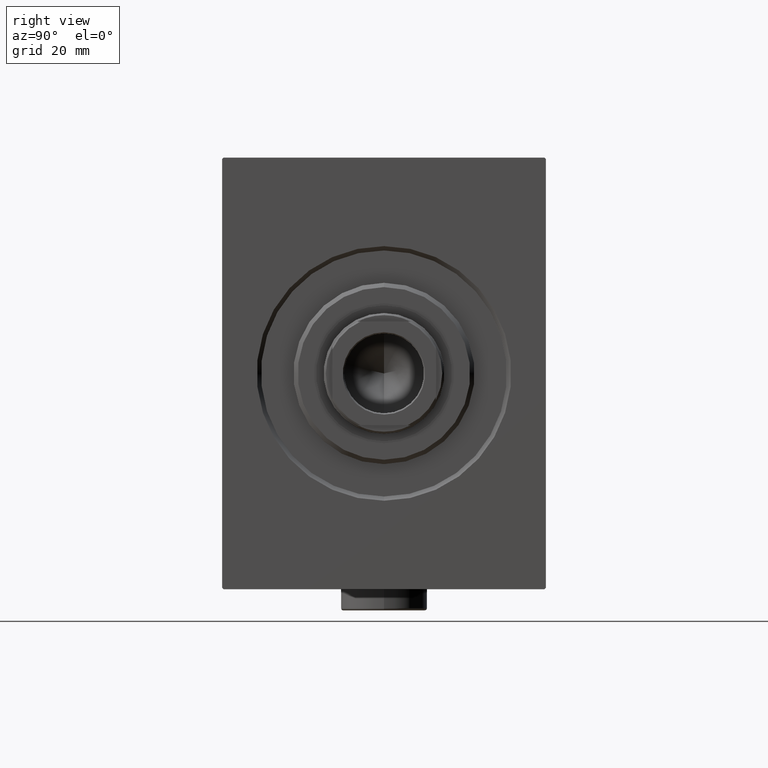
[diagram: clean part render]
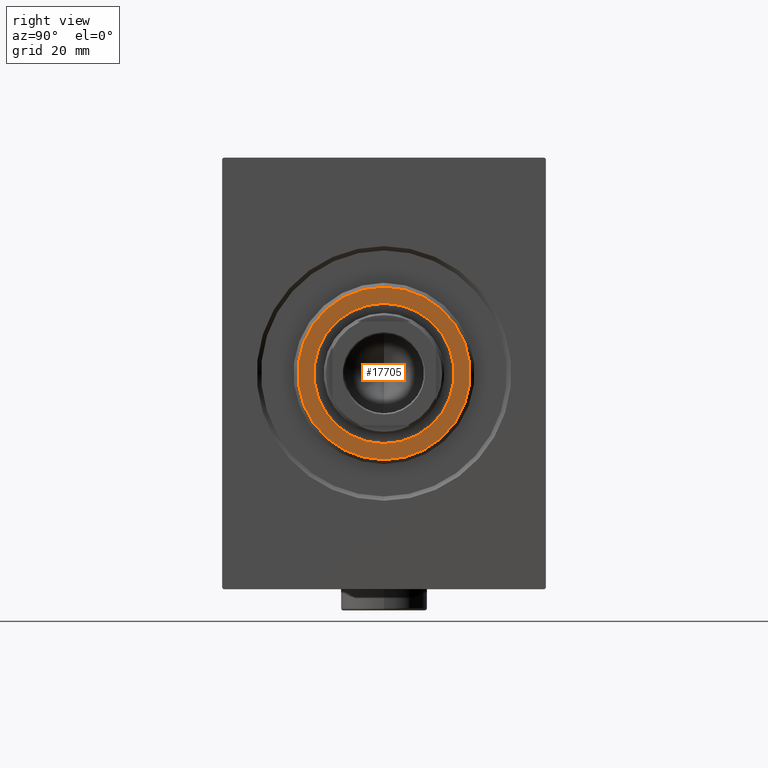
[diagram: same view with one face highlighted and labeled with its STEP entity id]
A machine part, right view. The second image highlights one B-rep face of the part: STEP entity #17705.
In plain terms, the highlighted planar face has unit normal (1, 0, 0).
Its self-contained STEP definition (entity closure, byte-faithful):
#400 = DIRECTION ( 'NONE',  ( 0.000000000000000000, 0.000000000000000000, -1.000000000000000000 ) ) ;
#1199 = EDGE_LOOP ( 'NONE', ( #38520, #19587 ) ) ;
#7233 = DIRECTION ( 'NONE',  ( 0.000000000000000000, 0.000000000000000000, -1.000000000000000000 ) ) ;
#7357 = EDGE_LOOP ( 'NONE', ( #41881, #42795 ) ) ;
#7459 = DIRECTION ( 'NONE',  ( 0.000000000000000000, 0.000000000000000000, -1.000000000000000000 ) ) ;
#8367 = DIRECTION ( 'NONE',  ( 1.000000000000000000, 0.000000000000000000, 0.000000000000000000 ) ) ;
#8791 = VERTEX_POINT ( 'NONE', #21006 ) ;
#10236 = AXIS2_PLACEMENT_3D ( 'NONE', #27669, #41065, #7459 ) ;
#10241 = AXIS2_PLACEMENT_3D ( 'NONE', #24253, #24704, #7233 ) ;
#10376 = DIRECTION ( 'NONE',  ( 1.000000000000000000, -0.000000000000000000, 0.000000000000000000 ) ) ;
#12164 = CARTESIAN_POINT ( 'NONE',  ( 3.000000000000000000, 0.000000000000000000, 20.00000000000001776 ) ) ;
#12292 = EDGE_CURVE ( 'NONE', #36085, #25090, #35611, .T. ) ;
#14952 = DIRECTION ( 'NONE',  ( 0.000000000000000000, 0.000000000000000000, -1.000000000000000000 ) ) ;
#16862 = CARTESIAN_POINT ( 'NONE',  ( 3.000000000000000000, 1.990051048614449313E-15, 16.25000000000000000 ) ) ;
#17705 = ADVANCED_FACE ( 'NONE', ( #27444, #41283 ), #31519, .T. ) ;
#19587 = ORIENTED_EDGE ( 'NONE', *, *, #29409, .T. ) ;
#21006 = CARTESIAN_POINT ( 'NONE',  ( 3.000000000000000000, 2.510525938252075270E-15, -20.00000000000001776 ) ) ;
#22572 = VERTEX_POINT ( 'NONE', #12164 ) ;
#24253 = CARTESIAN_POINT ( 'NONE',  ( 3.000000000000000000, 0.000000000000000000, 0.000000000000000000 ) ) ;
#24704 = DIRECTION ( 'NONE',  ( 1.000000000000000000, 0.000000000000000000, 0.000000000000000000 ) ) ;
#25090 = VERTEX_POINT ( 'NONE', #16862 ) ;
#25857 = CARTESIAN_POINT ( 'NONE',  ( 3.000000000000000000, 0.000000000000000000, 0.000000000000000000 ) ) ;
#27444 = FACE_OUTER_BOUND ( 'NONE', #1199, .T. ) ;
#27669 = CARTESIAN_POINT ( 'NONE',  ( 3.000000000000000000, 0.000000000000000000, 0.000000000000000000 ) ) ;
#29409 = EDGE_CURVE ( 'NONE', #8791, #22572, #41538, .T. ) ;
#30148 = CIRCLE ( 'NONE', #42441, 16.25000000000000000 ) ;
#30209 = CARTESIAN_POINT ( 'NONE',  ( 3.000000000000000000, 0.000000000000000000, -16.25000000000000000 ) ) ;
#30817 = CARTESIAN_POINT ( 'NONE',  ( 3.000000000000000000, 0.000000000000000000, 0.000000000000000000 ) ) ;
#31519 = PLANE ( 'NONE',  #10236 ) ;
#33053 = AXIS2_PLACEMENT_3D ( 'NONE', #25857, #42655, #14952 ) ;
#33327 = CARTESIAN_POINT ( 'NONE',  ( 3.000000000000000000, 0.000000000000000000, 0.000000000000000000 ) ) ;
#35611 = CIRCLE ( 'NONE', #10241, 16.25000000000000000 ) ;
#36047 = DIRECTION ( 'NONE',  ( 0.000000000000000000, 0.000000000000000000, -1.000000000000000000 ) ) ;
#36085 = VERTEX_POINT ( 'NONE', #30209 ) ;
#38520 = ORIENTED_EDGE ( 'NONE', *, *, #41035, .T. ) ;
#39369 = AXIS2_PLACEMENT_3D ( 'NONE', #30817, #10376, #400 ) ;
#39447 = EDGE_CURVE ( 'NONE', #25090, #36085, #30148, .T. ) ;
#40300 = CIRCLE ( 'NONE', #33053, 20.00000000000001776 ) ;
#41035 = EDGE_CURVE ( 'NONE', #22572, #8791, #40300, .T. ) ;
#41065 = DIRECTION ( 'NONE',  ( 1.000000000000000000, -0.000000000000000000, 0.000000000000000000 ) ) ;
#41283 = FACE_BOUND ( 'NONE', #7357, .T. ) ;
#41538 = CIRCLE ( 'NONE', #39369, 20.00000000000001776 ) ;
#41881 = ORIENTED_EDGE ( 'NONE', *, *, #12292, .F. ) ;
#42441 = AXIS2_PLACEMENT_3D ( 'NONE', #33327, #8367, #36047 ) ;
#42655 = DIRECTION ( 'NONE',  ( 1.000000000000000000, -0.000000000000000000, 0.000000000000000000 ) ) ;
#42795 = ORIENTED_EDGE ( 'NONE', *, *, #39447, .F. ) ;